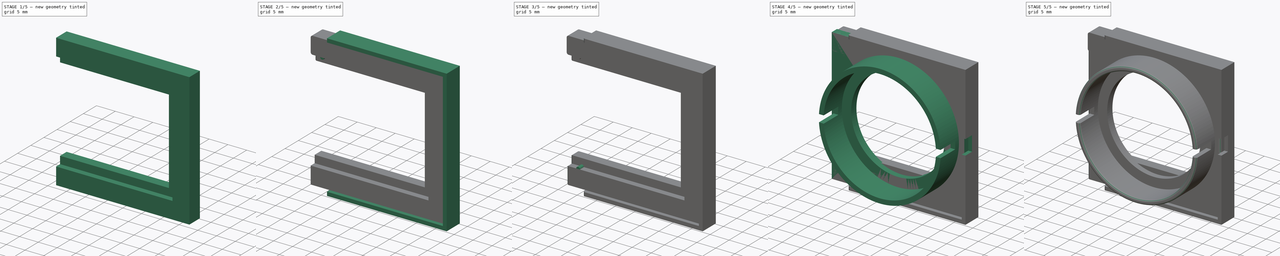
[diagram: build sequence overview — one tinted view per stage of 5, left to right]
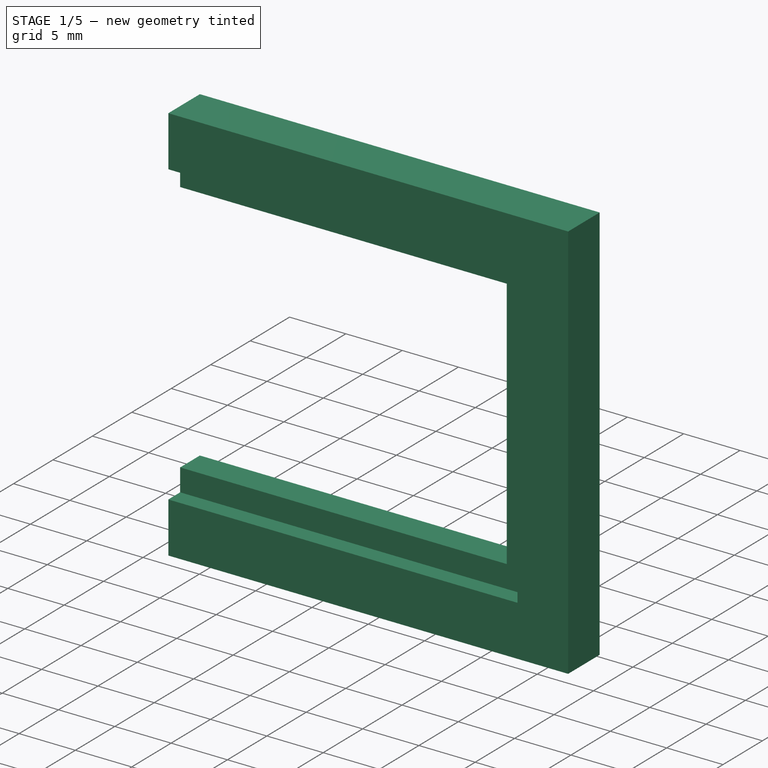
[diagram: stage 1 of 5 — iso view after this stage's code; geometry added in this stage tinted green]
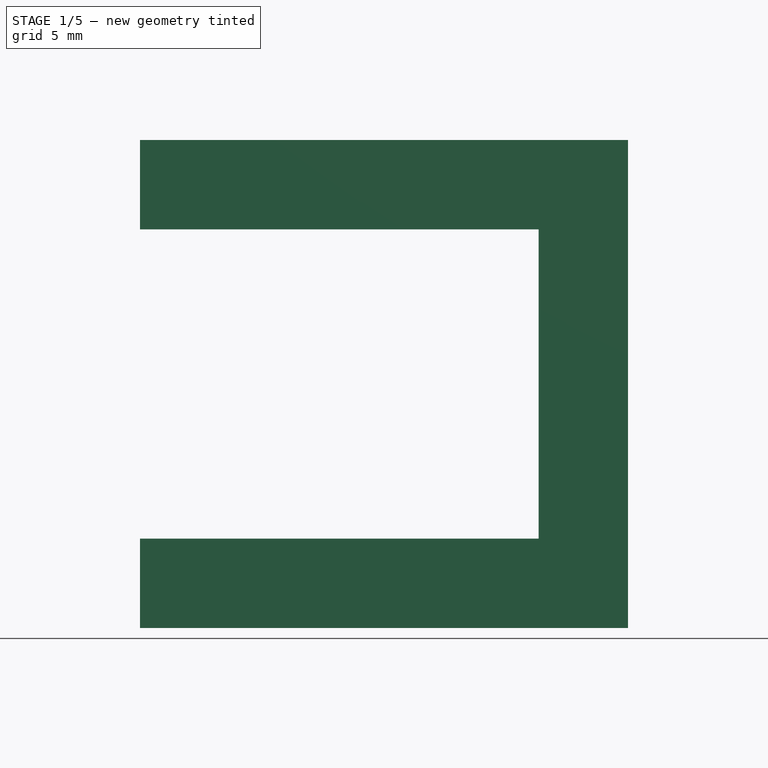
[diagram: stage 1 of 5 — front view after this stage's code; geometry added in this stage tinted green]
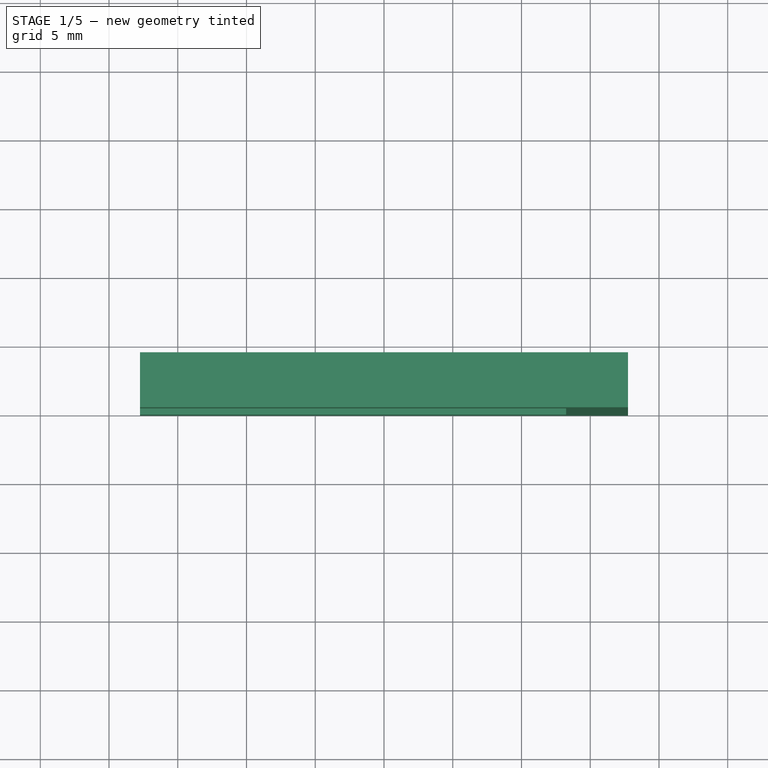
[diagram: stage 1 of 5 — top view after this stage's code; geometry added in this stage tinted green]
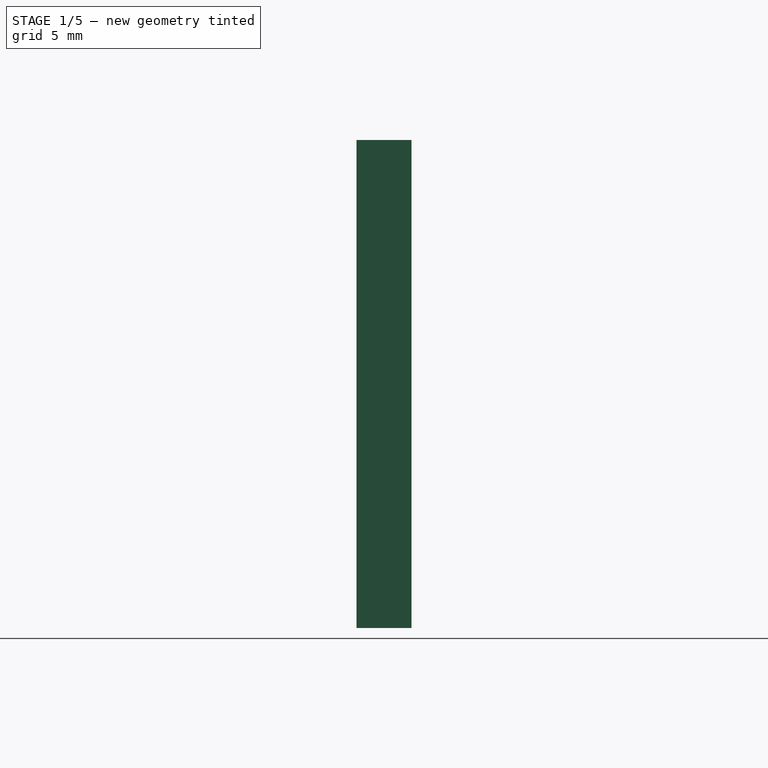
[diagram: stage 1 of 5 — right view after this stage's code; geometry added in this stage tinted green]
FCSTD DOCUMENT  (FreeCAD 1.0R39109 (Git))
Label: Pi Cam Filter Holder v1.00
License: All rights reserved
LicenseURL: https://en.wikipedia.org/wiki/All_rights_reserved
objects: Sketcher::SketchObject×7, PartDesign::Fillet×7, PartDesign::Pad×5, PartDesign::Pocket×2, PartDesign::Mirrored×2, PartDesign::Body×2, PartDesign::Plane×1, PartDesign::PolarPattern×1, App::Link×1, App::Part×1
note: 65 computed .brp shape members not serialized (recipe doc carries the construction recipe); baked Part::Feature solids carry a one-line shape summary decoded from their .brp
EXTERNAL_REF file=Master Document.FCStd obj=Spreadsheet

FEATURE [Sketcher::SketchObject] Sketch003
  ArcFitTolerance = 0
  AttachmentSupport = -> [YZ_Plane002]
  FullyConstrained = true
  MakeInternals = false
  MapMode = 5
  Placement = pos=(0,0,0) rot=(0.57735,0.57735,0.57735;2.0944rad)
  expr: Constraints[12] = <<Monitor Chassis Parameters>>.PiFilterHolderBodyWallThickness
  expr: Constraints[13] = 2 * <<Monitor Chassis Parameters>>.PiFilterHolderBodyWallThickness - 0.5
  expr: Constraints[14] = 0.5 * <<Monitor Chassis Parameters>>.PiFilterHolderFilterSide + 2 * <<Monitor Chassis Parameters>>.PiFilterHolderBodyWallThickness
  expr: Constraints[15] = <<Monitor Chassis Parameters>>.PiFilterHolderFilterThickness
  expr: Constraints[16] = 3 * <<Monitor Chassis Parameters>>.PiFilterHolderBodyWallThickness - 1
  sketch-geometry (6):
    g0: LineSegment StartX=0 StartY=-17.75 StartZ=0 EndX=4 EndY=-17.75 EndZ=0
    g1: LineSegment StartX=4 StartY=-17.75 StartZ=0 EndX=4 EndY=-11.25 EndZ=0
    g2: LineSegment StartX=4 StartY=-11.25 StartZ=0 EndX=1.5 EndY=-11.25 EndZ=0
    g3: LineSegment StartX=1.5 StartY=-11.25 StartZ=0 EndX=1.5 EndY=-13.25 EndZ=0
    g4: LineSegment StartX=1.5 StartY=-13.25 StartZ=0 EndX=0 EndY=-13.25 EndZ=0
    g5: LineSegment StartX=0 StartY=-13.25 StartZ=0 EndX=0 EndY=-17.75 EndZ=0
  constraints (18):
    c: Horizontal(g0)
    c: Coincident(g1,g0)
    c: Vertical(g1)
    c: Coincident(g2,g1)
    c: Horizontal(g2)
    c: Coincident(g3,g2)
    c: Vertical(g3)
    c: Coincident(g4,g3)
    c: Horizontal(g4)
    c: Coincident(g5,g4)
    c: Coincident(g5,g0)
    c: Vertical(g4,g0)
    c: DistanceX(g2,g1) = 2.5
    c: DistanceY(g0,g4) = 4.5
    c: DistanceY(g0,g-1) = 17.75
    c: DistanceX(g4,g3) = 1.5
    c: DistanceY(g0,g1) = 6.5
    c: Vertical(g-1,g0)
FEATURE [PartDesign::Pad] Pad002  label="Holder Wing Pad"
  Direction = (1,0,0)
  Length = 17.75
  Length2 = 17.75
  Placement = pos=(0,0,0) rot=(1,1,1;2.0944rad)
  Profile = -> Sketch003
  ReferenceAxis = -> Sketch003 [N_Axis]
  Suppressed = false
  Type = 4
  expr: Length = 2 * <<Monitor Chassis Parameters>>.PiFilterHolderBodyWallThickness + 0.5 * <<Monitor Chassis Parameters>>.PiFilterHolderFilterSide
  expr: Length2 = 2 * <<Monitor Chassis Parameters>>.PiFilterHolderBodyWallThickness + 0.5 * <<Monitor Chassis Parameters>>.PiFilterHolderFilterSide
FEATURE [PartDesign::PolarPattern] PolarPattern  label="Holder Wing Polar"
  Angle = 270
  Axis = -> Y_Axis002
  BaseFeature = -> Pad002
  Mode = 0
  Occurrences = 2
  Offset = 120
  Originals = -> [Pad002]
  Placement = pos=(0,0,0) rot=(1,1,1;2.0944rad)
  Suppressed = false
  TransformMode = 0
FEATURE [PartDesign::Mirrored] Mirrored  label="Holder Wing Mirror"
  BaseFeature = -> PolarPattern
  MirrorPlane = -> Sketch003 [H_Axis]
  Originals = -> [Pad002]
  Placement = pos=(0,0,0) rot=(1,1,1;2.0944rad)
  Suppressed = false
  TransformMode = 0
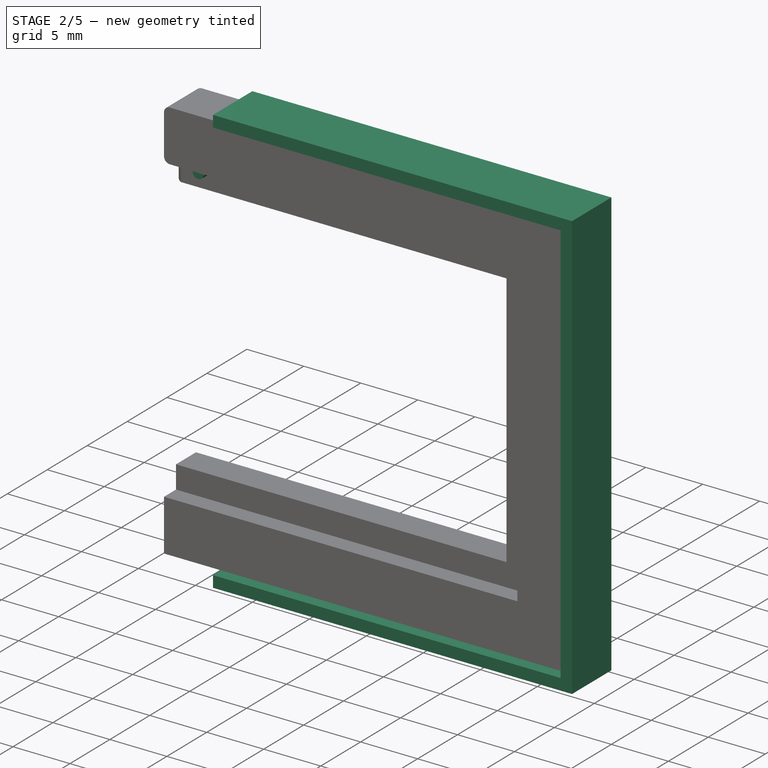
[diagram: stage 2 of 5 — iso view after this stage's code; geometry added in this stage tinted green]
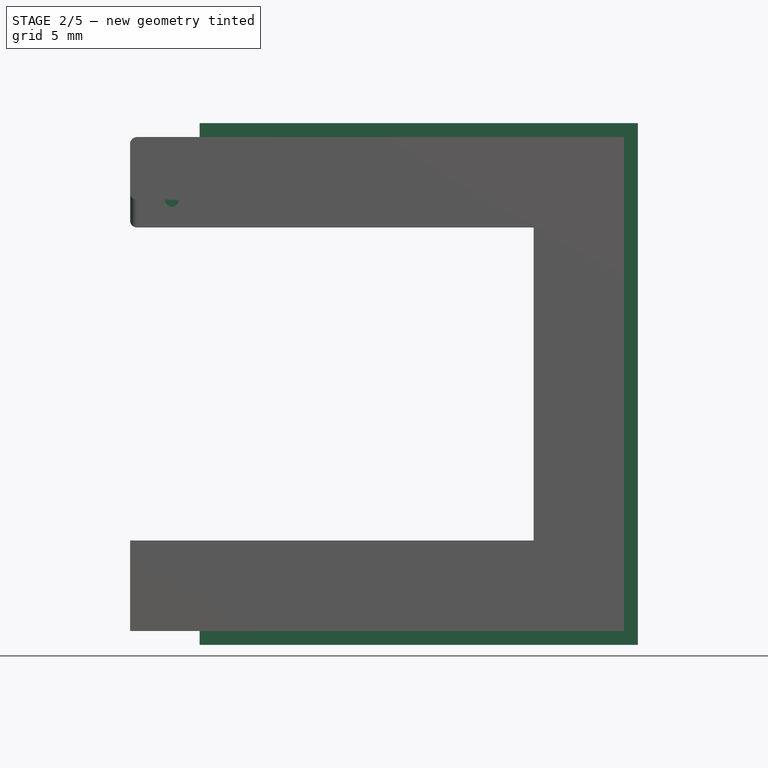
[diagram: stage 2 of 5 — front view after this stage's code; geometry added in this stage tinted green]
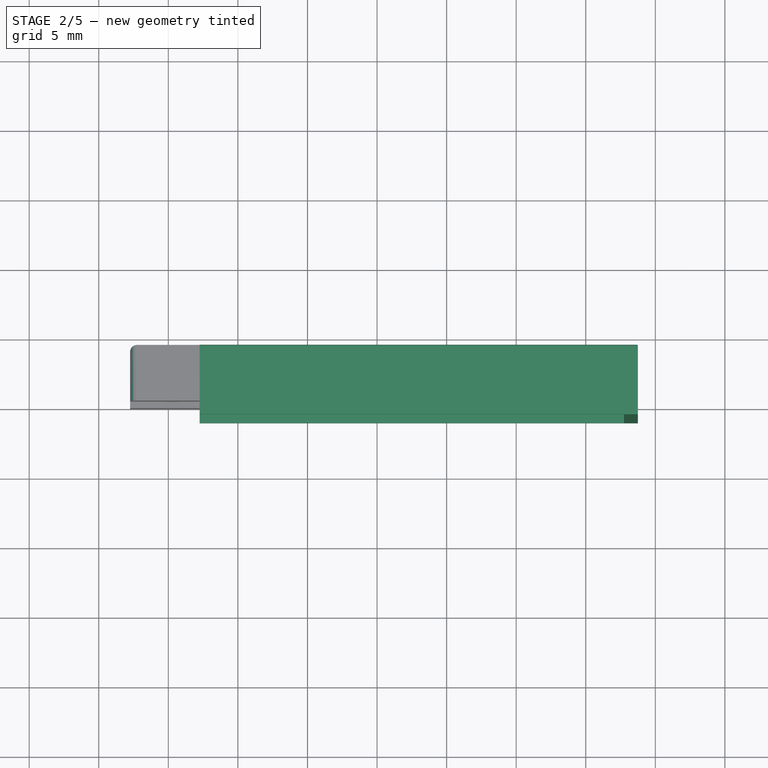
[diagram: stage 2 of 5 — top view after this stage's code; geometry added in this stage tinted green]
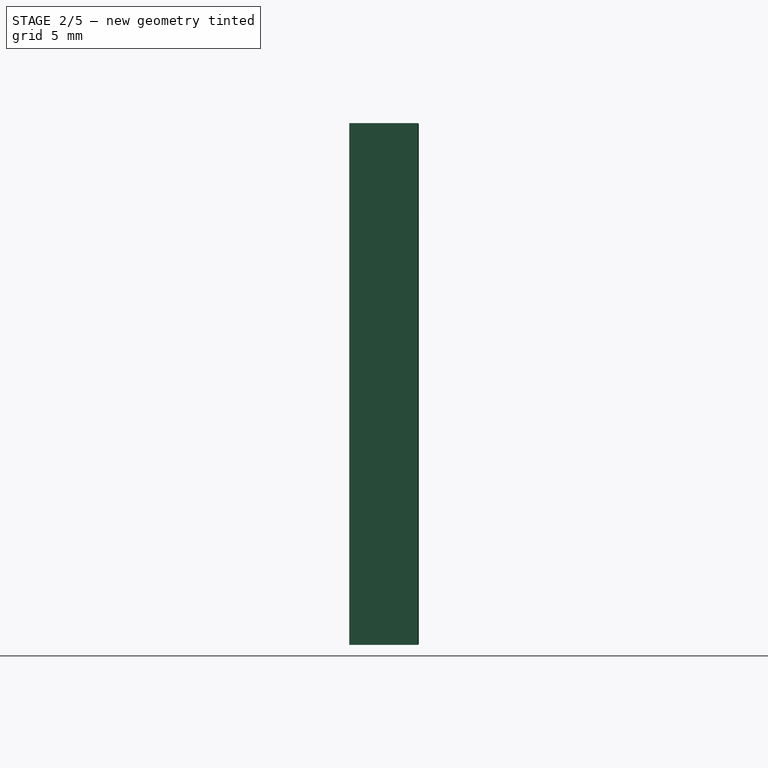
[diagram: stage 2 of 5 — right view after this stage's code; geometry added in this stage tinted green]
FEATURE [PartDesign::Fillet] Fillet
  Base = -> Mirrored [Edge65,Edge49,Edge52,Edge66,Edge64]
  BaseFeature = -> Mirrored
  Placement = pos=(0,0,0) rot=(1,1,1;2.0944rad)
  Radius = 0.5
  SupportTransform = false
  Suppressed = false
  UseAllEdges = false
FEATURE [PartDesign::Body] Body  label="Filter Holder Body"
  AllowCompound = false
  Group = -> [Sketch,Pad,Sketch001,Pad001,DatumPlane,Sketch002,Pocket,Fillet002,Fillet003,Fillet004]
  Origin = -> Origin001
  Placement = pos=(0,-3,0) rot=(0,0,1;0rad)
  Tip = -> Fillet004
FEATURE [Sketcher::SketchObject] Sketch007
  ArcFitTolerance = 1e-06
  FullyConstrained = true
  MakeInternals = false
  MapMode = 5
  Placement = pos=(-5e-16,1.5,-1e-15) rot=(0.57735,0.57735,-0.57735;2.0944rad)
  expr: Constraints[2] = <<Monitor Chassis Parameters>>.PiFilterHolderFilterSide
  sketch-geometry (2):
    g0: ArcOfCircle CenterX=-13.25 CenterY=-14.75 CenterZ=0 NormalX=0 NormalY=0 NormalZ=1 AngleXU=0 Radius=0.5 StartAngle=4.71239 EndAngle=7.85398
    g1: LineSegment StartX=-13.25 StartY=-14.25 StartZ=0 EndX=-13.25 EndY=-15.25 EndZ=0
  constraints (7):
    c: Radius(g0) = 0.5
    c: Vertical(g0,g-3)
    c: DistanceY(g0,g-3) = 25.5
    c: Vertical(g0,g0)
    c: Vertical(g0,g0)
    c: Coincident(g1,g0)
    c: Coincident(g1,g0)
FEATURE [PartDesign::Pad] Pad004  label="Retainer Bump Pad"
  BaseFeature = -> Fillet
  Direction = (0,-1,0)
  Length = 1.5
  Length2 = 10
  Placement = pos=(0,0,0) rot=(1,1,1;2.0944rad)
  Profile = -> Sketch007
  ReferenceAxis = -> Sketch007 [N_Axis]
  Suppressed = false
  Type = 0
  expr: Length = <<Monitor Chassis Parameters>>.PiFilterHolderFilterThickness
FEATURE [Sketcher::SketchObject] Sketch008
  ArcFitTolerance = 1e-06
  AttachmentSupport = -> [Pad004]
  FullyConstrained = true
  MakeInternals = false
  MapMode = 5
  Placement = pos=(9e-16,4,-1.8e-15) rot=(0.57735,0.57735,0.57735;4.18879rad)
  sketch-geometry (8):
    g0: LineSegment StartX=-18.75 StartY=18.75 StartZ=0 EndX=18.75 EndY=18.75 EndZ=0
    g1: LineSegment StartX=18.75 StartY=18.75 StartZ=0 EndX=18.75 EndY=-12.75 EndZ=0
    g2: LineSegment StartX=18.75 StartY=-12.75 StartZ=0 EndX=17.75 EndY=-12.75 EndZ=0
    g3: LineSegment StartX=17.75 StartY=-12.75 StartZ=0 EndX=17.75 EndY=17.75 EndZ=0
    g4: LineSegment StartX=17.75 StartY=17.75 StartZ=0 EndX=-17.75 EndY=17.75 EndZ=0
    g5: LineSegment StartX=-17.75 StartY=17.75 StartZ=0 EndX=-17.75 EndY=-12.75 EndZ=0
    g6: LineSegment StartX=-17.75 StartY=-12.75 StartZ=0 EndX=-18.75 EndY=-12.75 EndZ=0
    g7: LineSegment StartX=-18.75 StartY=-12.75 StartZ=0 EndX=-18.75 EndY=18.75 EndZ=0
  constraints (24):
    c: Horizontal(g0)
    c: Coincident(g1,g0)
    c: Vertical(g1)
    c: Coincident(g2,g1)
    c: Horizontal(g2)
    c: Coincident(g3,g2)
    c: Vertical(g3)
    c: Coincident(g4,g3)
    c: Horizontal(g4)
    c: Coincident(g5,g4)
    c: Vertical(g5)
    c: Coincident(g6,g5)
    c: Horizontal(g6)
    c: Coincident(g7,g6)
    c: Coincident(g7,g0)
    c: Vertical(g7)
    c: DistanceX(g4,g-1) = 17.75
    c: DistanceX(g-1,g3) = 17.75
    c: DistanceY(g-1,g3) = 17.75
    c: Horizontal(g5,g2)
    c: DistanceY(g4,g0) = 1
    c: DistanceX(g3,g0) = 1
    c: DistanceY(g2,g-1) = 12.75
    c: DistanceX(g0,g4) = 1
FEATURE [PartDesign::Pad] Pad005  label="Positioning Guide Pad"
  BaseFeature = -> Pad004
  Direction = (0,1,0)
  Length = 5
  Length2 = 10
  Placement = pos=(0,0,0) rot=(1,1,1;2.0944rad)
  Profile = -> Sketch008
  ReferenceAxis = -> Sketch008 [N_Axis]
  Reversed = true
  Suppressed = false
  Type = 0
FEATURE [PartDesign::Fillet] Fillet005
  Base = -> Pad005 [Edge50,Edge57,Edge51]
  BaseFeature = -> Pad005
  Placement = pos=(0,0,0) rot=(1,1,1;2.0944rad)
  Radius = 0.1
  SupportTransform = false
  Suppressed = false
  UseAllEdges = false
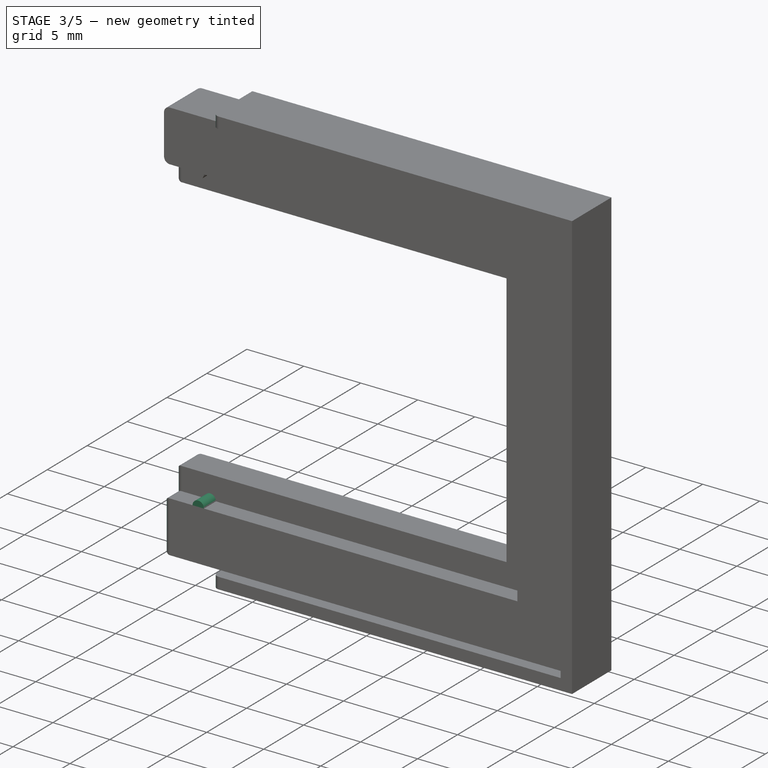
[diagram: stage 3 of 5 — iso view after this stage's code; geometry added in this stage tinted green]
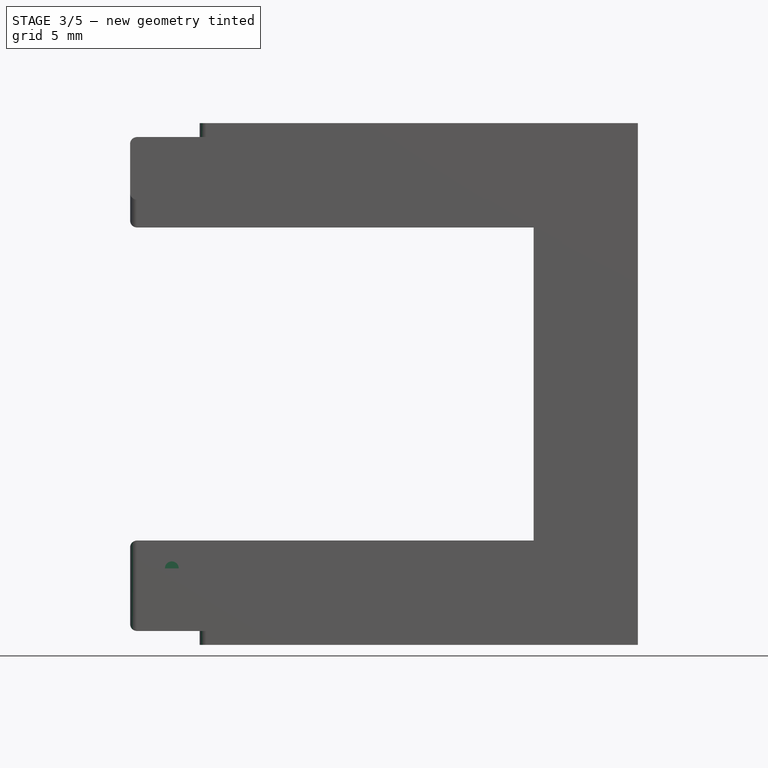
[diagram: stage 3 of 5 — front view after this stage's code; geometry added in this stage tinted green]
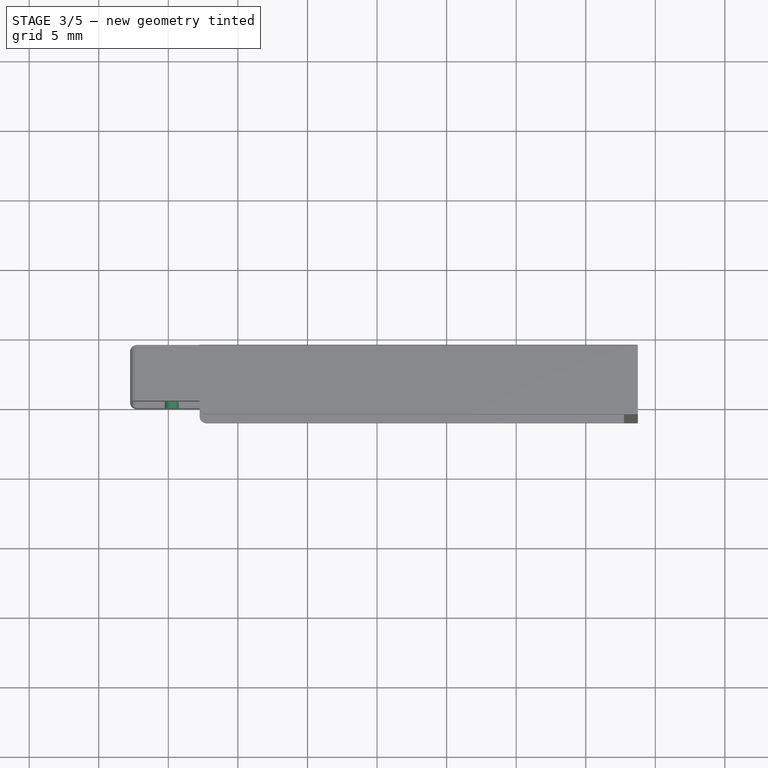
[diagram: stage 3 of 5 — top view after this stage's code; geometry added in this stage tinted green]
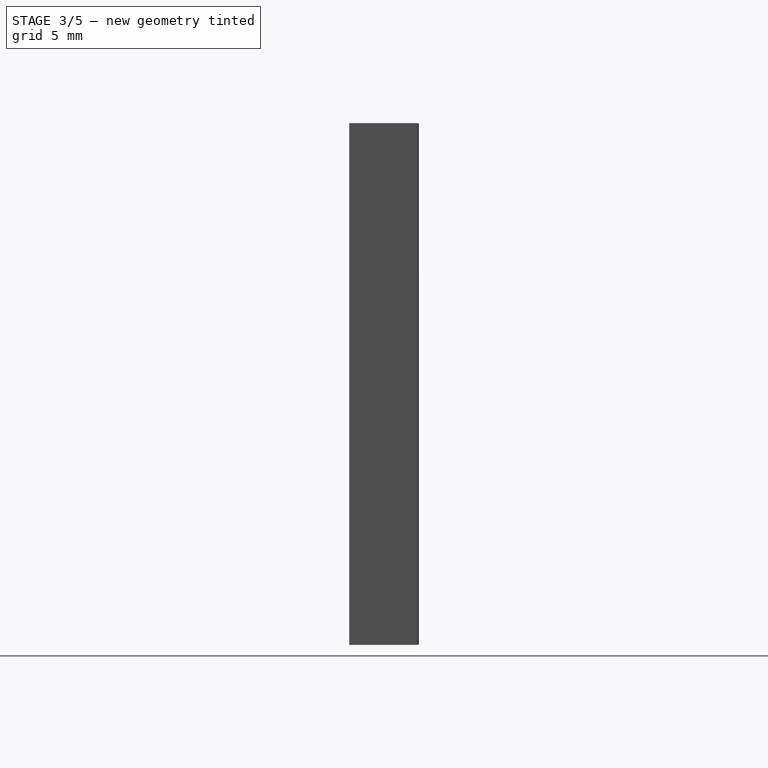
[diagram: stage 3 of 5 — right view after this stage's code; geometry added in this stage tinted green]
FEATURE [PartDesign::Fillet] Fillet006
  Base = -> Fillet005 [Edge65,Edge66,Edge68,Edge67,Edge35,Edge61]
  BaseFeature = -> Fillet005
  Placement = pos=(0,0,0) rot=(1,1,1;2.0944rad)
  Radius = 0.5
  SupportTransform = false
  Suppressed = false
  UseAllEdges = false
FEATURE [PartDesign::Fillet] Fillet007
  Base = -> Fillet006 [Edge51,Edge43]
  BaseFeature = -> Fillet006
  Placement = pos=(0,0,0) rot=(1,1,1;2.0944rad)
  Radius = 0.5
  SupportTransform = false
  Suppressed = false
  UseAllEdges = false
FEATURE [PartDesign::Mirrored] Mirrored001  label="Retainer Bump Mirror"
  BaseFeature = -> Fillet007
  MirrorPlane = -> Sketch007 [V_Axis]
  Originals = -> [Pad004]
  Placement = pos=(0,0,0) rot=(1,1,1;2.0944rad)
  Suppressed = false
  TransformMode = 0
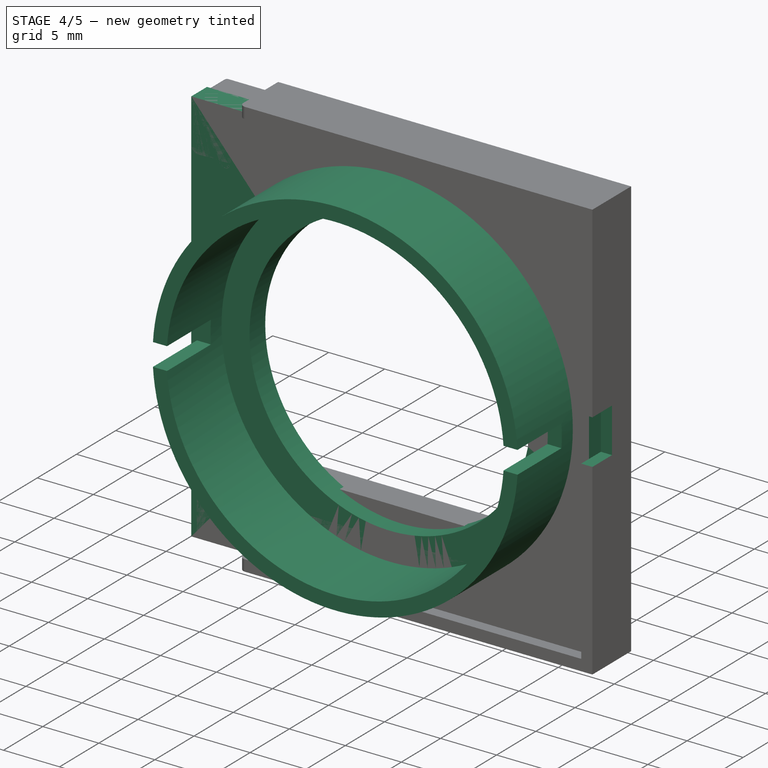
[diagram: stage 4 of 5 — iso view after this stage's code; geometry added in this stage tinted green]
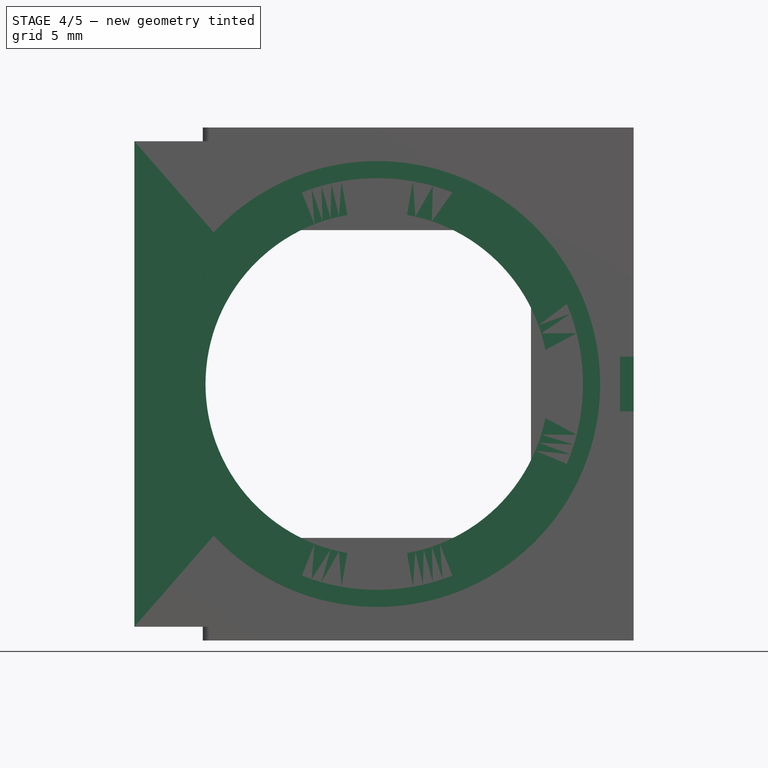
[diagram: stage 4 of 5 — front view after this stage's code; geometry added in this stage tinted green]
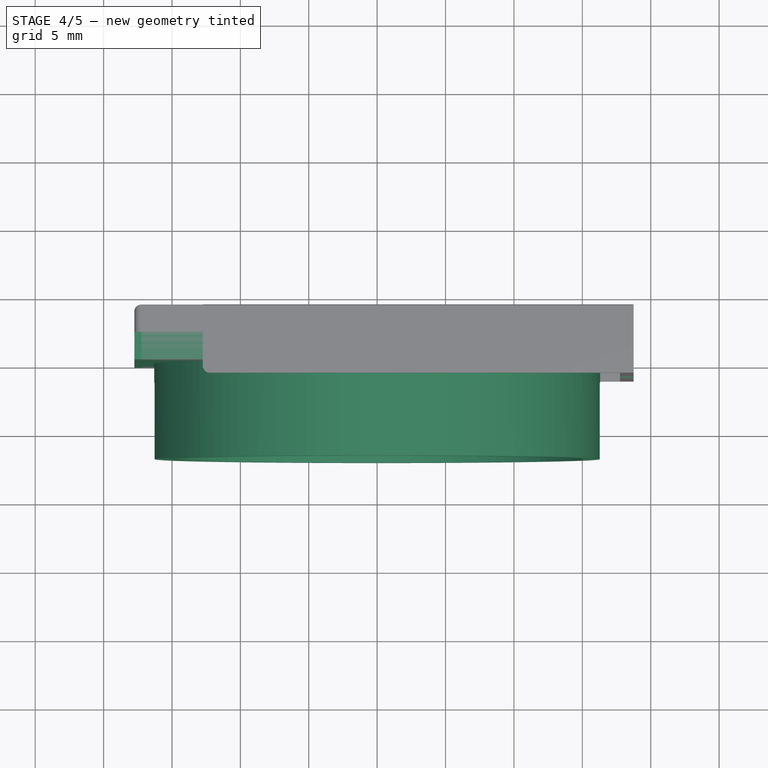
[diagram: stage 4 of 5 — top view after this stage's code; geometry added in this stage tinted green]
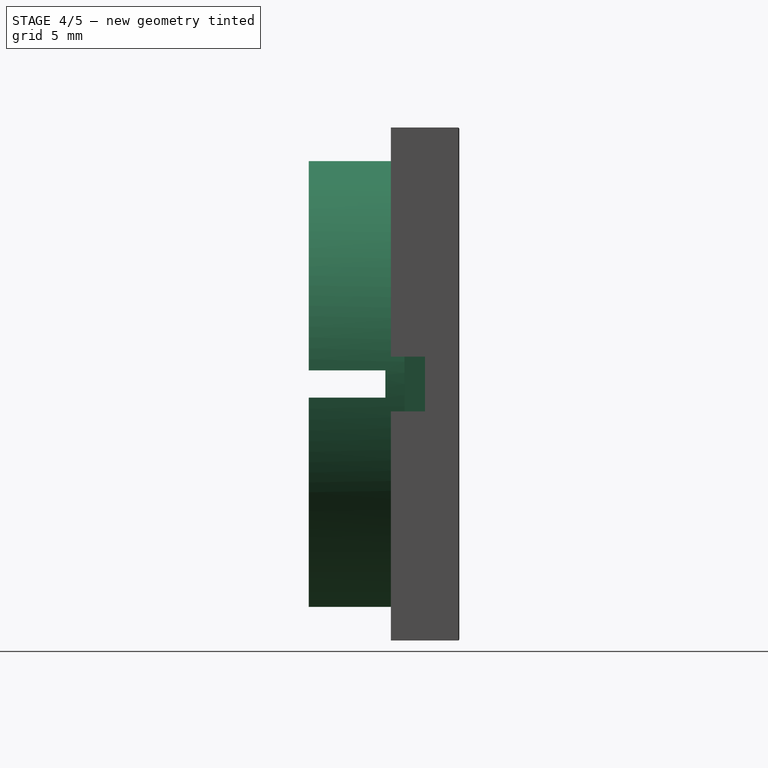
[diagram: stage 4 of 5 — right view after this stage's code; geometry added in this stage tinted green]
FEATURE [Sketcher::SketchObject] Sketch
  ArcFitTolerance = 0
  AttachmentSupport = -> [XZ_Plane001]
  FullyConstrained = true
  MakeInternals = false
  MapMode = 5
  Placement = pos=(0,0,0) rot=(1,0,0;1.5708rad)
  expr: Constraints[1] = <<Monitor Chassis Parameters>>.PiFilterHolderLensOuterDiameter
  expr: Constraints[3] = <<Monitor Chassis Parameters>>.PiFilterHolderBodyWallThickness + <<Monitor Chassis Parameters>>.PiFilterHolderLensOuterDiameter
  sketch-geometry (2):
    g0: Circle CenterX=0 CenterY=0 CenterZ=0 NormalX=0 NormalY=0 NormalZ=1 AngleXU=0 Radius=15.05
    g1: Circle CenterX=0 CenterY=0 CenterZ=0 NormalX=0 NormalY=0 NormalZ=1 AngleXU=0 Radius=16.3
  constraints (4):
    c: Coincident(g0,g-1)
    c: Diameter(g0) = 30.1
    c: Coincident(g1,g0)
    c: Diameter(g1) = 32.6
FEATURE [PartDesign::Pad] Pad  label="Lens Attach Holder Pad"
  Direction = (0,-1,2e-16)
  Length = 7
  Length2 = 10
  Placement = pos=(0,0,0) rot=(1,0,0;1.5708rad)
  Profile = -> Sketch
  ReferenceAxis = -> Sketch [N_Axis]
  Suppressed = false
  Type = 0
  expr: Length = <<Monitor Chassis Parameters>>.PiFilterHolderLensLipDepth
FEATURE [Sketcher::SketchObject] Sketch001
  ArcFitTolerance = 0
  AttachmentSupport = -> [XZ_Plane001]
  FullyConstrained = true
  MakeInternals = false
  MapMode = 5
  Placement = pos=(0,0,0) rot=(1,0,0;1.5708rad)
  expr: Constraints[10] = 0.5 * (<<Monitor Chassis Parameters>>.PiFilterHolderFilterSide + 4 * <<Monitor Chassis Parameters>>.PiFilterHolderBodyWallThickness)
  expr: Constraints[11] = 0.5 * (<<Monitor Chassis Parameters>>.PiFilterHolderFilterSide + 4 * <<Monitor Chassis Parameters>>.PiFilterHolderBodyWallThickness)
  expr: Constraints[13] = <<Monitor Chassis Parameters>>.PiFilterHolderLensOuterDiameter - <<Monitor Chassis Parameters>>.PiFilterInnerRadiusCutIn
  expr: Constraints[8] = <<Monitor Chassis Parameters>>.PiFilterHolderFilterSide + 4 * <<Monitor Chassis Parameters>>.PiFilterHolderBodyWallThickness
  expr: Constraints[9] = <<Monitor Chassis Parameters>>.PiFilterHolderFilterSide + 4 * <<Monitor Chassis Parameters>>.PiFilterHolderBodyWallThickness
  sketch-geometry (5):
    g0: LineSegment StartX=-17.75 StartY=17.75 StartZ=0 EndX=17.75 EndY=17.75 EndZ=0
    g1: LineSegment StartX=17.75 StartY=17.75 StartZ=0 EndX=17.75 EndY=-17.75 EndZ=0
    g2: LineSegment StartX=17.75 StartY=-17.75 StartZ=0 EndX=-17.75 EndY=-17.75 EndZ=0
    g3: LineSegment StartX=-17.75 StartY=-17.75 StartZ=0 EndX=-17.75 EndY=17.75 EndZ=0
    g4: Circle CenterX=0 CenterY=0 CenterZ=0 NormalX=0 NormalY=0 NormalZ=1 AngleXU=0 Radius=12.55
  constraints (14):
    c: Coincident(g0,g1)
    c: Coincident(g1,g2)
    c: Coincident(g2,g3)
    c: Coincident(g3,g0)
    c: Horizontal(g0)
    c: Horizontal(g2)
    c: Vertical(g1)
    c: Vertical(g3)
    c: DistanceX(g0,g0) = 35.5
    c: DistanceY(g2,g0) = 35.5
    c: DistanceX(g0,g-1) = 17.75
    c: DistanceY(g-1,g0) = 17.75
    c: Coincident(g4,g-1)
    c: Diameter(g4) = 25.1
FEATURE [PartDesign::Pad] Pad001  label="Main Holder Pad"
  BaseFeature = -> Pad
  Direction = (0,-1,2e-16)
  Length = 2
  Length2 = 10
  Placement = pos=(0,0,0) rot=(1,0,0;1.5708rad)
  Profile = -> Sketch001
  ReferenceAxis = -> Sketch001 [N_Axis]
  Reversed = true
  Suppressed = false
  Type = 0
  expr: Length = <<Monitor Chassis Parameters>>.PiFilterHolderBodyWallThickness - 0.5
FEATURE [PartDesign::Plane] DatumPlane
  Length = 60
  MapMode = 2
  Placement = pos=(0,0,0) rot=(0.57735,0.57735,0.57735;2.0944rad)
  ResizeMode = 0
  Width = 60
FEATURE [Sketcher::SketchObject] Sketch002
  ArcFitTolerance = 0
  AttachmentSupport = -> [DatumPlane]
  ExternalGeometry = -> [Pad]
  FullyConstrained = true
  MakeInternals = false
  MapMode = 5
  Placement = pos=(0,0,0) rot=(0.57735,0.57735,0.57735;2.0944rad)
  expr: Constraints[11] = 0.5 * <<Monitor Chassis Parameters>>.PiFilterHolderTensionCutWidth
  expr: Constraints[8] = <<Monitor Chassis Parameters>>.PiFilterHolderTensionCutWidth
  expr: Constraints[9] = 0.8 * <<Monitor Chassis Parameters>>.PiFilterHolderLensLipDepth
  sketch-geometry (4):
    g0: LineSegment StartX=-1.4 StartY=-1 StartZ=0 EndX=-7 EndY=-1 EndZ=0
    g1: LineSegment StartX=-7 StartY=-1 StartZ=0 EndX=-7 EndY=1 EndZ=0
    g2: LineSegment StartX=-7 StartY=1 StartZ=0 EndX=-1.4 EndY=1 EndZ=0
    g3: LineSegment StartX=-1.4 StartY=1 StartZ=0 EndX=-1.4 EndY=-1 EndZ=0
  constraints (12):
    c: Coincident(g0,g1)
    c: Coincident(g1,g2)
    c: Coincident(g2,g3)
    c: Coincident(g3,g0)
    c: Horizontal(g0)
    c: Horizontal(g2)
    c: Vertical(g1)
    c: Vertical(g3)
    c: DistanceY(g0,g1) = 2
    c: DistanceX(g1,g2) = 5.6
    c: Vertical(g1,g-3)
    c: DistanceY(g-3,g1) = 1
FEATURE [PartDesign::Pocket] Pocket  label="Lens Attach Tension Relief Pocket"
  BaseFeature = -> Pad001
  Direction = (-1,0,0)
  Length = 25
  Length2 = 25
  Placement = pos=(0,0,0) rot=(1,0,0;1.5708rad)
  Profile = -> Sketch002
  ReferenceAxis = -> Sketch002 [N_Axis]
  Suppressed = false
  Type = 4
FEATURE [Sketcher::SketchObject] Sketch009
  ArcFitTolerance = 1e-06
  AttachmentSupport = -> [Mirrored001]
  FullyConstrained = true
  MakeInternals = false
  MapMode = 5
  Placement = pos=(18.75,0,6.2e-15) rot=(0.57735,0.57735,0.57735;2.0944rad)
  sketch-geometry (4):
    g0: LineSegment StartX=-1 StartY=2 StartZ=0 EndX=-1 EndY=-2 EndZ=0
    g1: LineSegment StartX=-1 StartY=-2 StartZ=0 EndX=1.5 EndY=-2 EndZ=0
    g2: LineSegment StartX=1.5 StartY=-2 StartZ=0 EndX=1.5 EndY=2 EndZ=0
    g3: LineSegment StartX=1.5 StartY=2 StartZ=0 EndX=-1 EndY=2 EndZ=0
  constraints (12):
    c: Coincident(g0,g1)
    c: Coincident(g1,g2)
    c: Coincident(g2,g3)
    c: Coincident(g3,g0)
    c: Vertical(g0)
    c: Vertical(g2)
    c: Horizontal(g1)
    c: Horizontal(g3)
    c: DistanceY(g-1,g0) = 2
    c: DistanceY(g0,g-1) = 2
    c: DistanceX(g1) = 2.5
    c: DistanceX(g-1,g2) = 1.5
FEATURE [PartDesign::Pocket] Pocket001
  BaseFeature = -> Mirrored001
  Direction = (-1,0,0)
  Length = 5
  Length2 = 5
  Placement = pos=(0,0,0) rot=(1,1,1;2.0944rad)
  Profile = -> Sketch009
  ReferenceAxis = -> Sketch009 [N_Axis]
  Suppressed = false
  Type = 1
FEATURE [PartDesign::Body] Body001  label="Holder Wings Body"
  AllowCompound = false
  Group = -> [Sketch003,Pad002,PolarPattern,Mirrored,Fillet,Sketch007,Pad004,Sketch008,Pad005,Fillet005,Fillet006,Fillet007,Mirrored001,Sketch009,Pocket001]
  Origin = -> Origin002
  Placement = pos=(0,0.3,0) rot=(0,0,1;0rad)
  Tip = -> Pocket001
FEATURE [App::Part] Part  label="Filter Holder Part"
  Group = -> [Body,Body001]
  Origin = -> Origin
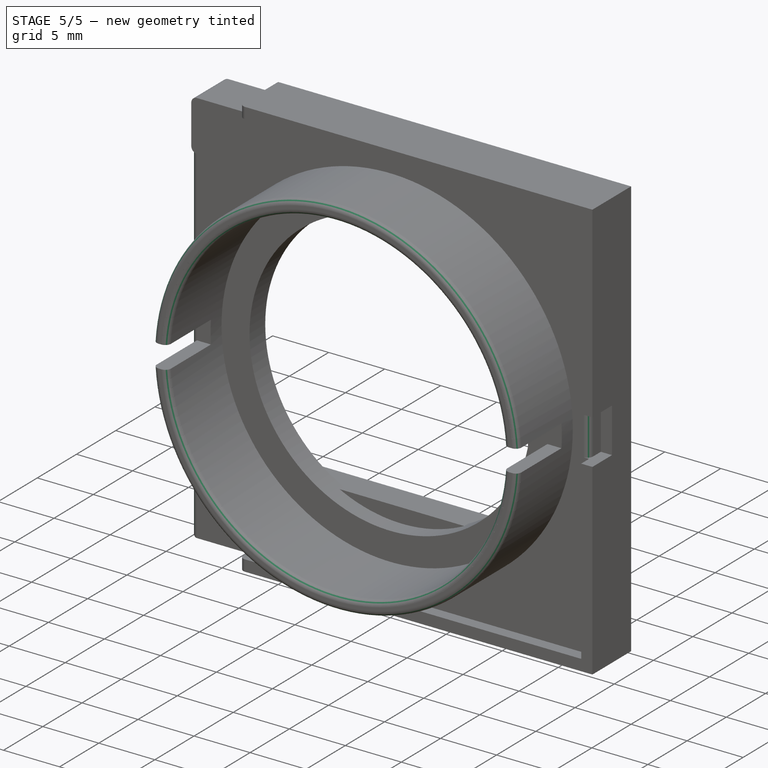
[diagram: stage 5 of 5 — iso view after this stage's code; geometry added in this stage tinted green]
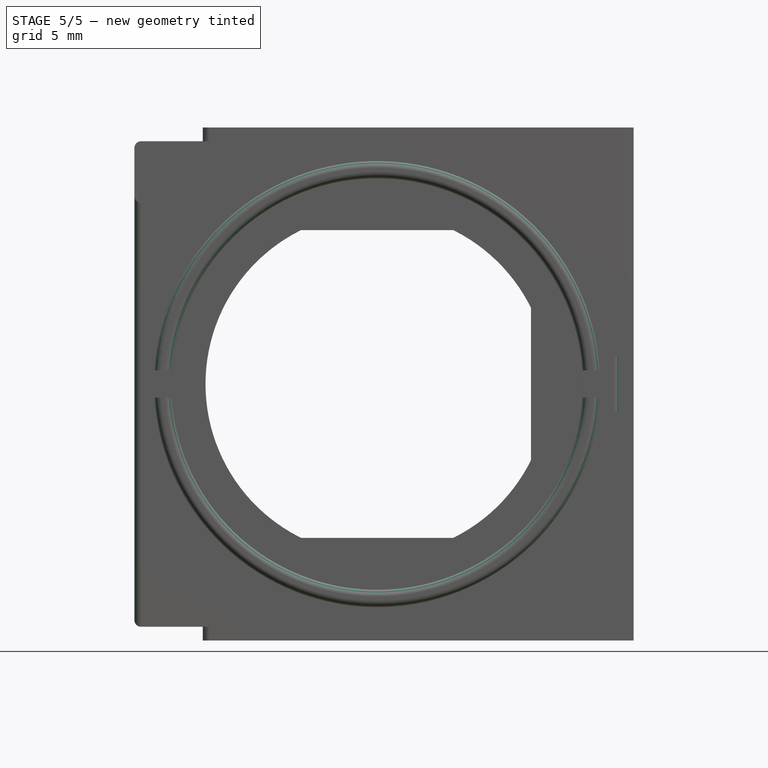
[diagram: stage 5 of 5 — front view after this stage's code; geometry added in this stage tinted green]
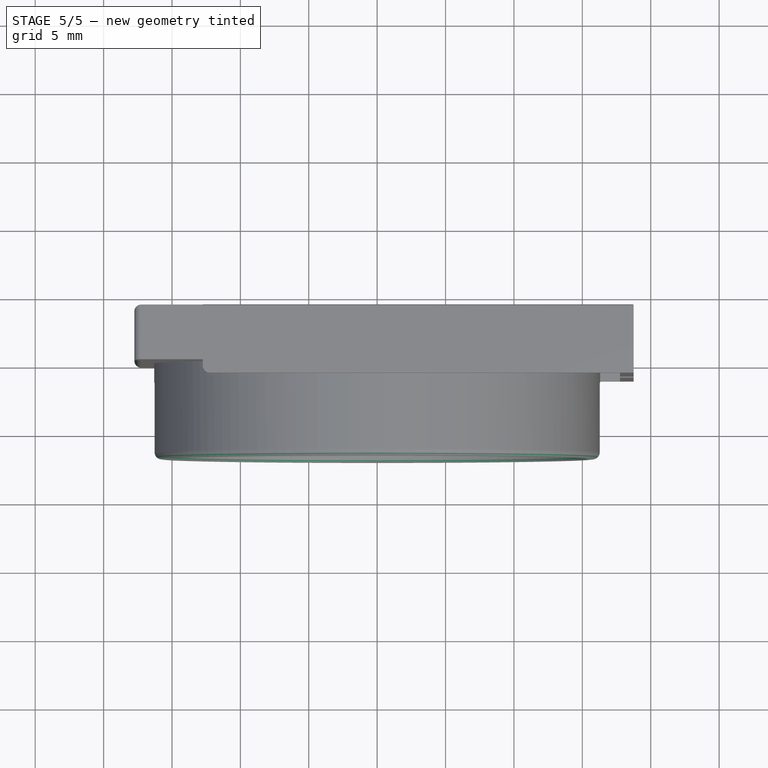
[diagram: stage 5 of 5 — top view after this stage's code; geometry added in this stage tinted green]
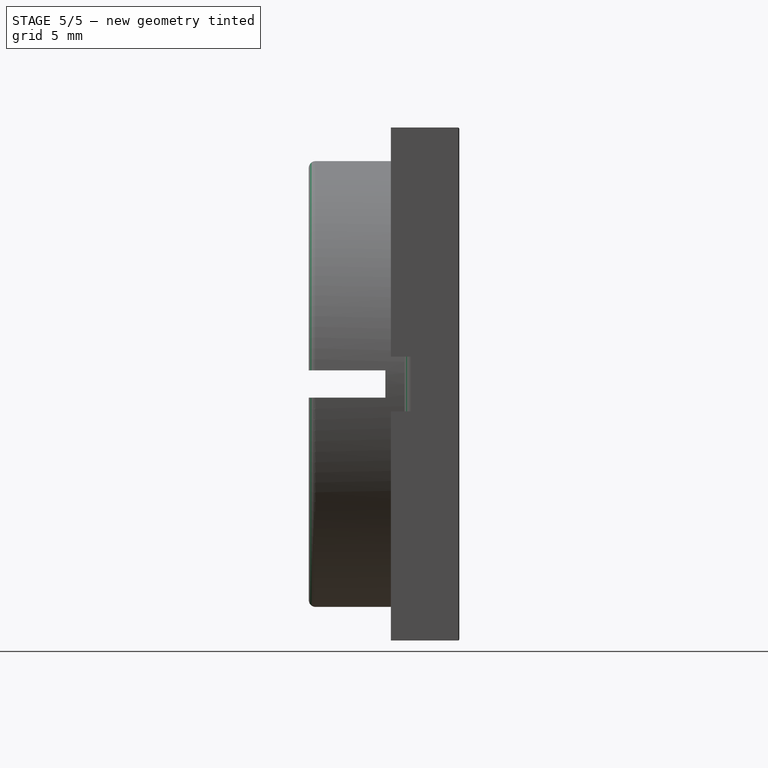
[diagram: stage 5 of 5 — right view after this stage's code; geometry added in this stage tinted green]
FEATURE [App::Link] Link  label="Monitor Chassis Parameters"
  LinkedObject = -> <external Master Document.FCStd>#Spreadsheet
FEATURE [PartDesign::Fillet] Fillet002
  Base = -> Pocket [Edge36,Edge33]
  BaseFeature = -> Pocket
  Placement = pos=(0,0,0) rot=(1,0,0;1.5708rad)
  Radius = 0.5
  SupportTransform = false
  Suppressed = false
  UseAllEdges = false
FEATURE [PartDesign::Fillet] Fillet003
  Base = -> Fillet002 [Edge4,Edge1,Edge5,Edge3]
  BaseFeature = -> Fillet002
  Placement = pos=(0,0,0) rot=(1,0,0;1.5708rad)
  Radius = 0.5
  SupportTransform = false
  Suppressed = false
  UseAllEdges = false
FEATURE [PartDesign::Fillet] Fillet004
  Base = -> Fillet003 [Edge54,Edge23,Edge19,Edge46]
  BaseFeature = -> Fillet003
  Placement = pos=(0,0,0) rot=(1,0,0;1.5708rad)
  Radius = 0.5
  SupportTransform = false
  Suppressed = false
  UseAllEdges = false
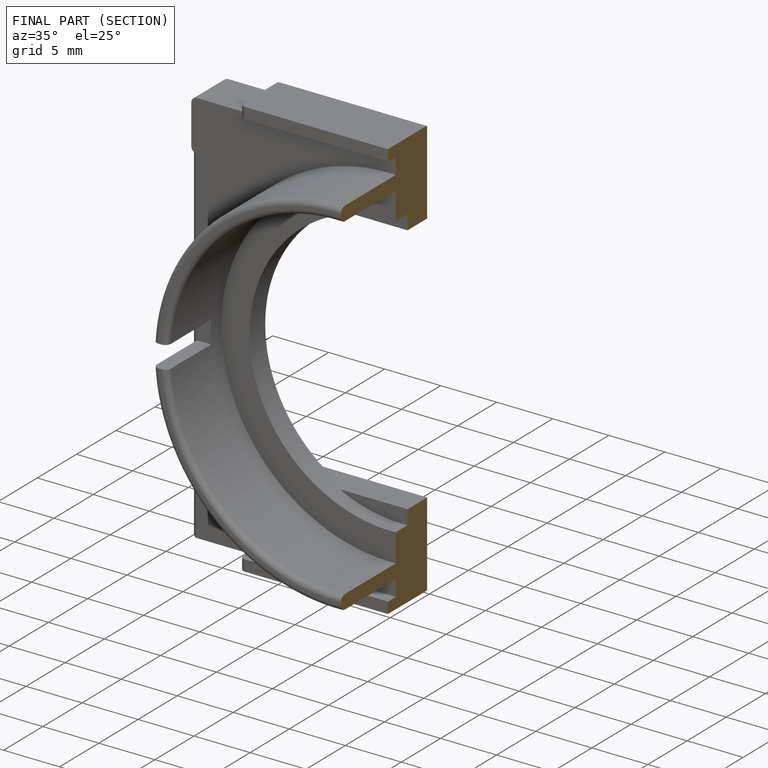
[diagram: finished part — half-section view (interior)]
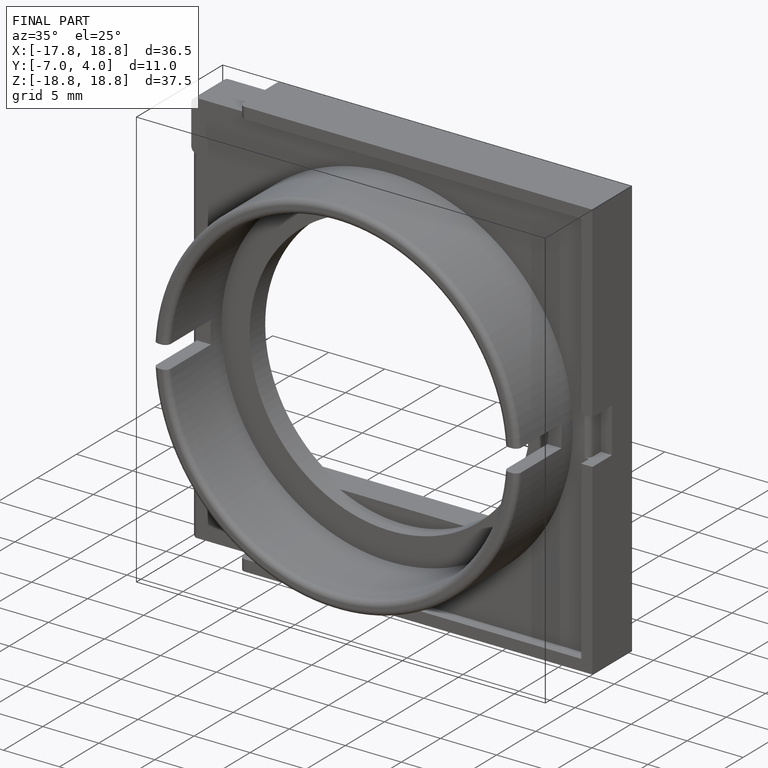
[diagram: finished part — iso view with bounding-box wireframe]
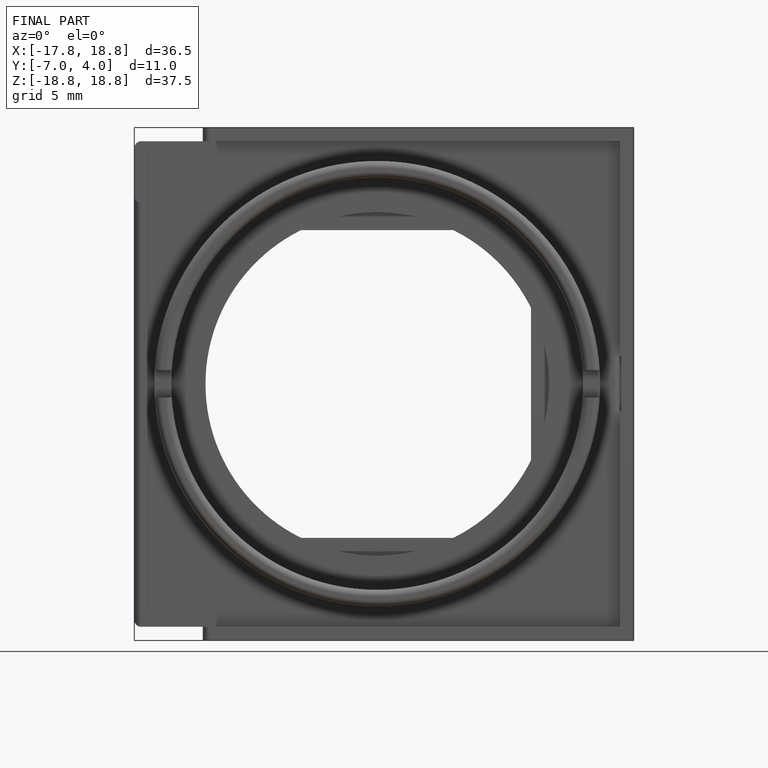
[diagram: finished part — front view with bounding-box wireframe]
